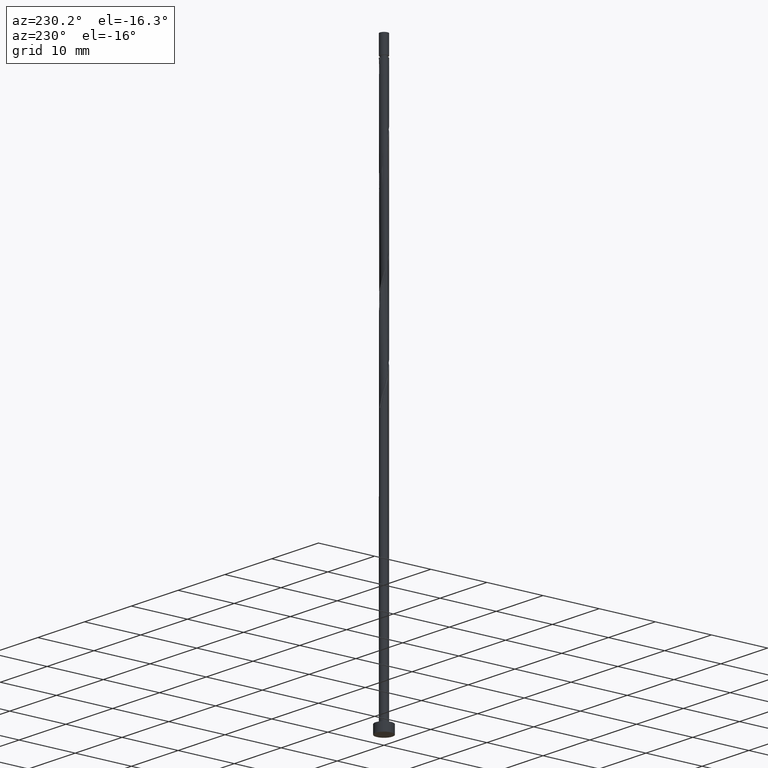
[diagram: clean part render]
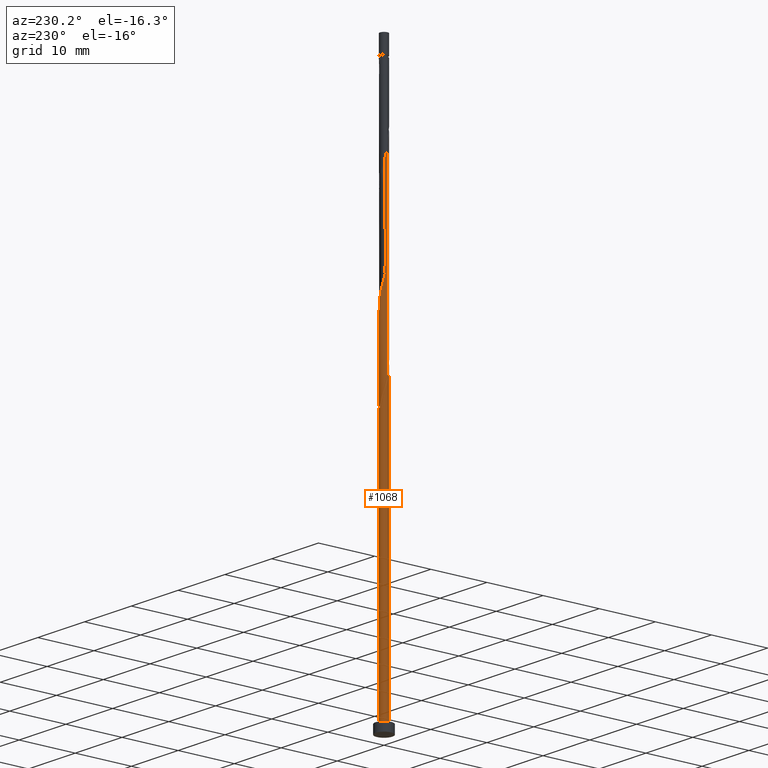
[diagram: same view with one face highlighted and labeled with its STEP entity id]
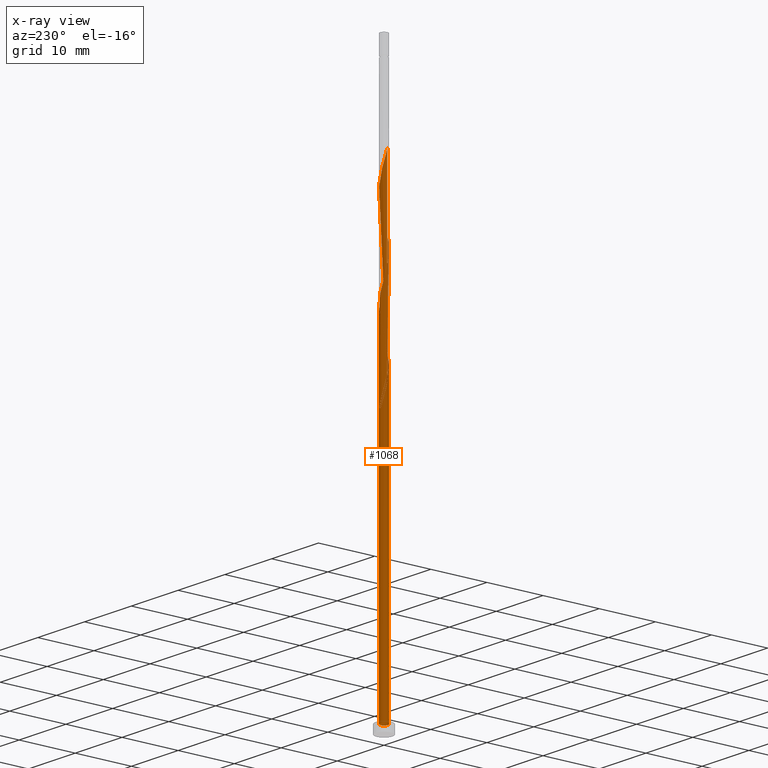
[diagram: x-ray of the same camera — body ghosted, the highlighted face saturated]
A machine part, auxiliary view. The second image highlights one B-rep face of the part: STEP entity #1068.
The next image is the same camera in x-ray: the body ghosted, the highlighted face saturated — about 0% of this face is hidden behind the body in this view.
In plain terms, the highlighted cylindrical surface (bore or boss wall) has radius 0.7 mm, axis along (-0, -0, -1).
Its self-contained STEP definition (entity closure, byte-faithful):
#4 = CARTESIAN_POINT ( 'NONE',  ( 0.000000000000000000, 0.000000000000000000, 46.48462050143847080 ) ) ;
#6 = CARTESIAN_POINT ( 'NONE',  ( -0.6999999999999999556, 0.000000000000000000, 1.500000000000000000 ) ) ;
#7 = CARTESIAN_POINT ( 'NONE',  ( 0.6245337423366339458, -0.3393999038076242480, 73.79943531625326614 ) ) ;
#43 = CARTESIAN_POINT ( 'NONE',  ( -0.4707881453605409772, 0.5325347051691633471, 64.54017605699399951 ) ) ;
#56 = CARTESIAN_POINT ( 'NONE',  ( -0.6637425475935891939, 0.2223641844227018938, 82.59573161254955664 ) ) ;
#59 = CARTESIAN_POINT ( 'NONE',  ( 0.1037282889820811543, 0.6922719422776364429, 78.89202790884586136 ) ) ;
#79 = CARTESIAN_POINT ( 'NONE',  ( 0.1392982411949268418, -0.6860000000000009424, 71.48462050143845659 ) ) ;
#87 = CARTESIAN_POINT ( 'NONE',  ( 0.3342436566413459764, 0.6150456714708456563, 61.29943531625325903 ) ) ;
#91 = CARTESIAN_POINT ( 'NONE',  ( -0.7000000000000015099, 0.1141380602743183453, 49.69051276741740253 ) ) ;
#96 = CARTESIAN_POINT ( 'NONE',  ( -0.7000000000000009548, -4.406995131333641256E-16, 51.18214205642719605 ) ) ;
#101 = CARTESIAN_POINT ( 'NONE',  ( 0.2257945103930814323, 0.6739818462673710098, 61.76239827921622805 ) ) ;
#102 = CARTESIAN_POINT ( 'NONE',  ( -0.7000000000000012879, 4.976543230933968727E-16, 50.12043227978303150 ) ) ;
#104 = CARTESIAN_POINT ( 'NONE',  ( -0.6997670043020833841, -0.01805933803021412751, 66.85499087180882327 ) ) ;
#121 = ORIENTED_EDGE ( 'NONE', *, *, #296, .F. ) ;
#125 = EDGE_CURVE ( 'NONE', #494, #657, #257, .T. ) ;
#130 = CARTESIAN_POINT ( 'NONE',  ( 0.000000000000000000, 0.000000000000000000, 1.500000000000000000 ) ) ;
#144 = DIRECTION ( 'NONE',  ( -0.000000000000000000, -0.000000000000000000, -1.000000000000000000 ) ) ;
#164 = CARTESIAN_POINT ( 'NONE',  ( -0.3655233476607376297, 0.5969863334406314559, 80.74387976069770900 ) ) ;
#167 = CARTESIAN_POINT ( 'NONE',  ( -0.3342436566413458654, -0.6150456714708457673, 52.96610198291993044 ) ) ;
#172 = CARTESIAN_POINT ( 'NONE',  ( -0.6061958099077141560, -0.3711621344802780720, 68.24387976069769479 ) ) ;
#176 = CARTESIAN_POINT ( 'NONE',  ( -0.2602585499609340047, 0.6614379617121000088, 46.94758346440138297 ) ) ;
#178 = CARTESIAN_POINT ( 'NONE',  ( 0.2257945103930814323, 0.6739818462673710098, 78.42906494588287103 ) ) ;
#181 = CARTESIAN_POINT ( 'NONE',  ( -0.6965826557536219932, -0.1414471410982079125, 50.65128716810509957 ) ) ;
#190 = CARTESIAN_POINT ( 'NONE',  ( 0.6513892328306682966, 0.2563046377892427286, 59.44758346440139718 ) ) ;
#206 = CARTESIAN_POINT ( 'NONE',  ( -0.2602585499609340047, 0.6614379617121000088, 80.28091679773471867 ) ) ;
#219 = CARTESIAN_POINT ( 'NONE',  ( -0.2257945103930810438, 0.6739818462673713428, 47.87350939032732811 ) ) ;
#225 = CARTESIAN_POINT ( 'NONE',  ( 0.1037282889820811543, 0.6922719422776364429, 62.22536124217918285 ) ) ;
#233 = CARTESIAN_POINT ( 'NONE',  ( -0.1037282889820806686, 0.6922719422776366649, 47.41054642736438041 ) ) ;
#235 = DIRECTION ( 'NONE',  ( -0.000000000000000000, -0.000000000000000000, -1.000000000000000000 ) ) ;
#252 = CARTESIAN_POINT ( 'NONE',  ( -0.7000000000000016209, 0.1141380602743181927, 83.02384610075070270 ) ) ;
#256 = ORIENTED_EDGE ( 'NONE', *, *, #945, .F. ) ;
#257 =( BOUNDED_CURVE ( )  B_SPLINE_CURVE ( 2, ( #1170, #176, #642, #618, #529, #411, #1060, #91, #1042 ),
 .UNSPECIFIED., .F., .T. ) 
 B_SPLINE_CURVE_WITH_KNOTS ( ( 3, 2, 2, 2, 3 ),
 ( 0.000000000000000000, 0.01388888888888883955, 0.02777777777777779011, 0.04166666666666662966, 0.05452480538552925693 ),
 .UNSPECIFIED. ) 
 CURVE ( )  GEOMETRIC_REPRESENTATION_ITEM ( )  RATIONAL_B_SPLINE_CURVE ( ( 0.9090909090909131685, 0.8952797754656477425, 0.9090909090909131685, 0.8952797754656477425, 0.9090909090909131685, 0.8952797754656477425, 0.9090909090909131685, 0.8963047551055876028, 0.9071930855141258077 ) ) 
 REPRESENTATION_ITEM ( '' )  );
#265 = CARTESIAN_POINT ( 'NONE',  ( -0.6965826557536219932, -0.1414471410982079125, 67.31795383477175676 ) ) ;
#280 = CARTESIAN_POINT ( 'NONE',  ( 0.01833793242891950878, -0.7105620382879020980, 54.35499087180879485 ) ) ;
#286 = FACE_OUTER_BOUND ( 'NONE', #1318, .T. ) ;
#287 = CARTESIAN_POINT ( 'NONE',  ( -0.4426928028896104372, -0.5561094966743203027, 69.16980568662361861 ) ) ;
#288 = CARTESIAN_POINT ( 'NONE',  ( -0.6061958099077141560, -0.3711621344802780720, 51.57721309403103760 ) ) ;
#296 = EDGE_CURVE ( 'NONE', #1133, #365, #1082, .T. ) ;
#300 = CARTESIAN_POINT ( 'NONE',  ( 0.6637425475935891939, -0.2223641844227021713, 57.59573161254954954 ) ) ;
#317 = CARTESIAN_POINT ( 'NONE',  ( 0.6997670043020833841, 0.01805933803021418996, 75.18832420514213766 ) ) ;
#323 = CARTESIAN_POINT ( 'NONE',  ( -0.01833793242891971695, 0.7105620382879018759, 62.68832420514213055 ) ) ;
#325 = CARTESIAN_POINT ( 'NONE',  ( 0.01833793242891973430, 0.7105620382879019870, 46.94758346440140429 ) ) ;
#355 =( BOUNDED_CURVE ( )  B_SPLINE_CURVE ( 2, ( #96, #957, #609, #830, #1190, #870, #673, #1274, #424, #219, #233, #325, #1175 ),
 .UNSPECIFIED., .F., .T. ) 
 B_SPLINE_CURVE_WITH_KNOTS ( ( 3, 2, 2, 2, 2, 2, 3 ),
 ( 0.9295248053855290626, 0.9305555555555555802, 0.9444444444444444198, 0.9583333333333333703, 0.9722222222222222099, 0.9861111111111111605, 1.000000000000000000 ),
 .UNSPECIFIED. ) 
 CURVE ( )  GEOMETRIC_REPRESENTATION_ITEM ( )  RATIONAL_B_SPLINE_CURVE ( ( 0.9071930855141261407, 0.9080659294509737522, 0.9090909090909138346, 0.8952797754656482976, 0.9090909090909138346, 0.8952797754656482976, 0.9090909090909138346, 0.8952797754656482976, 0.9090909090909138346, 0.8952797754656482976, 0.9090909090909138346, 0.8952797754656482976, 0.9090909090909138346 ) ) 
 REPRESENTATION_ITEM ( '' )  );
#365 = VERTEX_POINT ( 'NONE', #865 ) ;
#368 = CARTESIAN_POINT ( 'NONE',  ( 0.6999999999999999556, 0.000000000000000000, 1.500000000000000000 ) ) ;
#377 = CARTESIAN_POINT ( 'NONE',  ( 0.7029513528505444420, -0.1053284650377800530, 74.72536124217920417 ) ) ;
#379 = CIRCLE ( 'NONE', #541, 0.6999999999999999556 ) ;
#384 = CARTESIAN_POINT ( 'NONE',  ( -0.6513892328306680746, -0.2563046377892428951, 67.78091679773473288 ) ) ;
#398 = CARTESIAN_POINT ( 'NONE',  ( 0.6965826557536219932, 0.1414471410982078292, 75.65128716810508536 ) ) ;
#409 = CARTESIAN_POINT ( 'NONE',  ( 0.5244443063986623521, 0.4636358155772992151, 60.37350939032733521 ) ) ;
#411 = CARTESIAN_POINT ( 'NONE',  ( -0.6245337423366339458, 0.3393999038076240815, 48.79943531625325193 ) ) ;
#424 = CARTESIAN_POINT ( 'NONE',  ( -0.3342436566413457544, 0.6150456714708457673, 48.33647235329029712 ) ) ;
#443 =( BOUNDED_CURVE ( )  B_SPLINE_CURVE ( 2, ( #1252, #481, #917, #181, #1244, #288, #1326, #729, #167, #513, #827, #280, #1356, #1049, #624, #1235, #948, #719, #300, #505, #1039, #736, #190, #632, #409, #1057, #87, #101, #225, #323, #1285, #796, #1003, #43, #1045, #934, #809, #834, #104, #265, #384, #172, #1243, #287, #708, #857, #1268, #612, #79, #1121, #966, #727, #1037, #7, #501, #377, #317, #398, #1227, #1142, #479, #1171, #593, #178, #59, #1324, #620, #206, #164, #603, #925, #688, #56, #252, #1109 ),
 .UNSPECIFIED., .F., .T. ) 
 B_SPLINE_CURVE_WITH_KNOTS ( ( 3, 2, 2, 2, 2, 2, 2, 2, 2, 2, 2, 2, 2, 2, 2, 2, 2, 2, 2, 2, 2, 2, 2, 2, 2, 2, 2, 2, 2, 2, 2, 2, 2, 2, 2, 2, 2, 3 ),
 ( 0.05452480538552925693, 0.05555555555555558023, 0.06944444444444441977, 0.08333333333333337034, 0.09722222222222220989, 0.1111111111111111605, 0.1250000000000000000, 0.1388888888888888395, 0.1527777777777777901, 0.1666666666666666297, 0.1805555555555555802, 0.1944444444444444198, 0.2083333333333333703, 0.2222222222222222099, 0.2361111111111111605, 0.2500000000000000000, 0.2638888888888888395, 0.2777777777777777901, 0.2916666666666666297, 0.3055555555555555802, 0.3194444444444444198, 0.3333333333333333703, 0.3472222222222222099, 0.3611111111111111605, 0.3750000000000000000, 0.3888888888888888395, 0.4027777777777777901, 0.4166666666666666297, 0.4305555555555555802, 0.4444444444444444198, 0.4583333333333333703, 0.4722222222222222099, 0.4861111111111111605, 0.5000000000000000000, 0.5138888888888888395, 0.5277777777777777901, 0.5416666666666667407, 0.5545248053855292847 ),
 .UNSPECIFIED. ) 
 CURVE ( )  GEOMETRIC_REPRESENTATION_ITEM ( )  RATIONAL_B_SPLINE_CURVE ( ( 0.9071930855141258077, 0.9080659294509733082, 0.9090909090909131685, 0.8952797754656477425, 0.9090909090909131685, 0.8952797754656477425, 0.9090909090909131685, 0.8952797754656477425, 0.9090909090909131685, 0.8952797754656477425, 0.9090909090909131685, 0.8952797754656477425, 0.9090909090909131685, 0.8952797754656477425, 0.9090909090909131685, 0.8952797754656477425, 0.9090909090909131685, 0.8952797754656477425, 0.9090909090909131685, 0.8952797754656477425, 0.9090909090909131685, 0.8952797754656477425, 0.9090909090909131685, 0.8952797754656477425, 0.9090909090909131685, 0.8952797754656477425, 0.9090909090909131685, 0.8952797754656477425, 0.9090909090909131685, 0.8952797754656477425, 0.9090909090909131685, 0.8952797754656477425, 0.9090909090909131685, 0.8952797754656477425, 0.9090909090909131685, 0.8952797754656477425, 0.9090909090909131685, 0.8952797754656477425, 0.9090909090909131685, 0.8952797754656477425, 0.9090909090909131685, 0.8952797754656477425, 0.9090909090909131685, 0.8952797754656477425, 0.9090909090909131685, 0.8952797754656477425, 0.9090909090909131685, 0.8952797754656477425, 0.9090909090909131685, 0.8952797754656477425, 0.9090909090909131685, 0.8952797754656477425, 0.9090909090909131685, 0.8952797754656477425, 0.9090909090909131685, 0.8952797754656477425, 0.9090909090909131685, 0.8952797754656477425, 0.9090909090909131685, 0.8952797754656477425, 0.9090909090909131685, 0.8952797754656477425, 0.9090909090909131685, 0.8952797754656477425, 0.9090909090909131685, 0.8952797754656477425, 0.9090909090909131685, 0.8952797754656477425, 0.9090909090909131685, 0.8952797754656477425, 0.9090909090909131685, 0.8952797754656477425, 0.9090909090909131685, 0.8963047551055876028, 0.9071930855141258077 ) ) 
 REPRESENTATION_ITEM ( '' )  );
#474 = EDGE_CURVE ( 'NONE', #1225, #1276, #755, .T. ) ;
#479 = CARTESIAN_POINT ( 'NONE',  ( 0.5244443063986623521, 0.4636358155772992151, 77.04017605699397109 ) ) ;
#481 = CARTESIAN_POINT ( 'NONE',  ( -0.7000000000000011768, -0.009031172032416169212, 50.15444965371538188 ) ) ;
#491 = DIRECTION ( 'NONE',  ( 1.000000000000000000, 0.000000000000000000, 0.000000000000000000 ) ) ;
#494 = VERTEX_POINT ( 'NONE', #872 ) ;
#501 = CARTESIAN_POINT ( 'NONE',  ( 0.6637425475935891939, -0.2223641844227021713, 74.26239827921621384 ) ) ;
#505 = CARTESIAN_POINT ( 'NONE',  ( 0.7029513528505444420, -0.1053284650377800530, 58.05869457551250434 ) ) ;
#513 = CARTESIAN_POINT ( 'NONE',  ( -0.2257945103930810715, -0.6739818462673711208, 53.42906494588289235 ) ) ;
#526 = CARTESIAN_POINT ( 'NONE',  ( 0.1392982411949270638, 0.6860000000000011644, 46.48462050143843527 ) ) ;
#529 = CARTESIAN_POINT ( 'NONE',  ( -0.5476609438485873227, 0.4359673044883936588, 48.33647235329029002 ) ) ;
#539 = AXIS2_PLACEMENT_3D ( 'NONE', #130, #567, #759 ) ;
#541 = AXIS2_PLACEMENT_3D ( 'NONE', #1259, #747, #491 ) ;
#546 = DIRECTION ( 'NONE',  ( -1.100531396792705681E-29, -4.956352788505163938E-14, -1.000000000000000000 ) ) ;
#567 = DIRECTION ( 'NONE',  ( 0.000000000000000000, 0.000000000000000000, 1.000000000000000000 ) ) ;
#581 = ORIENTED_EDGE ( 'NONE', *, *, #780, .T. ) ;
#583 = VECTOR ( 'NONE', #235, 1000.000000000000000 ) ;
#593 = CARTESIAN_POINT ( 'NONE',  ( 0.3342436566413459764, 0.6150456714708456563, 77.96610198291992333 ) ) ;
#603 = CARTESIAN_POINT ( 'NONE',  ( -0.4707881453605409772, 0.5325347051691633471, 81.20684272366064249 ) ) ;
#609 = CARTESIAN_POINT ( 'NONE',  ( -0.6997670043020833841, 0.01805933803021419343, 51.11425013106806858 ) ) ;
#612 = CARTESIAN_POINT ( 'NONE',  ( 0.01833793242891950878, -0.7105620382879020980, 71.02165753847549468 ) ) ;
#618 = CARTESIAN_POINT ( 'NONE',  ( -0.4707881453605409772, 0.5325347051691633471, 47.87350939032732811 ) ) ;
#619 = ORIENTED_EDGE ( 'NONE', *, *, #1194, .T. ) ;
#620 = CARTESIAN_POINT ( 'NONE',  ( -0.1392982411949267585, 0.6860000000000009424, 79.81795383477178518 ) ) ;
#624 = CARTESIAN_POINT ( 'NONE',  ( 0.3655233476607375187, -0.5969863334406314559, 55.74387976069768769 ) ) ;
#632 = CARTESIAN_POINT ( 'NONE',  ( 0.6061958099077143780, 0.3711621344802775724, 59.91054642736436620 ) ) ;
#642 = CARTESIAN_POINT ( 'NONE',  ( -0.3655233476607376297, 0.5969863334406314559, 47.41054642736436620 ) ) ;
#657 = VERTEX_POINT ( 'NONE', #102 ) ;
#661 = EDGE_CURVE ( 'NONE', #494, #1020, #901, .T. ) ;
#673 = CARTESIAN_POINT ( 'NONE',  ( -0.5244443063986623521, 0.4636358155772993817, 49.26239827921622094 ) ) ;
#688 = CARTESIAN_POINT ( 'NONE',  ( -0.6245337423366339458, 0.3393999038076240815, 82.13276864958659473 ) ) ;
#704 = DIRECTION ( 'NONE',  ( -1.000000000000000000, 0.000000000000000000, 0.000000000000000000 ) ) ;
#708 = CARTESIAN_POINT ( 'NONE',  ( -0.3342436566413458654, -0.6150456714708457673, 69.63276864958659473 ) ) ;
#711 = ORIENTED_EDGE ( 'NONE', *, *, #661, .T. ) ;
#719 = CARTESIAN_POINT ( 'NONE',  ( 0.6245337423366339458, -0.3393999038076242480, 57.13276864958658763 ) ) ;
#727 = CARTESIAN_POINT ( 'NONE',  ( 0.4707881453605408661, -0.5325347051691634581, 72.87350939032732811 ) ) ;
#729 = CARTESIAN_POINT ( 'NONE',  ( -0.4426928028896104372, -0.5561094966743203027, 52.50313901995695431 ) ) ;
#736 = CARTESIAN_POINT ( 'NONE',  ( 0.6965826557536219932, 0.1414471410982078292, 58.98462050143843527 ) ) ;
#740 = ORIENTED_EDGE ( 'NONE', *, *, #125, .F. ) ;
#747 = DIRECTION ( 'NONE',  ( 0.000000000000000000, 0.000000000000000000, 1.000000000000000000 ) ) ;
#755 = CIRCLE ( 'NONE', #539, 0.6999999999999999556 ) ;
#759 = DIRECTION ( 'NONE',  ( 1.000000000000000000, 0.000000000000000000, 0.000000000000000000 ) ) ;
#777 = LINE ( 'NONE', #1079, #583 ) ;
#780 = EDGE_CURVE ( 'NONE', #1276, #1225, #379, .T. ) ;
#781 = VECTOR ( 'NONE', #1283, 1000.000000000000000 ) ;
#796 = CARTESIAN_POINT ( 'NONE',  ( -0.2602585499609340047, 0.6614379617121000088, 63.61425013106805437 ) ) ;
#799 = EDGE_CURVE ( 'NONE', #365, #1020, #355, .T. ) ;
#802 = ORIENTED_EDGE ( 'NONE', *, *, #799, .F. ) ;
#809 = CARTESIAN_POINT ( 'NONE',  ( -0.6637425475935891939, 0.2223641844227018938, 65.92906494588287103 ) ) ;
#827 = CARTESIAN_POINT ( 'NONE',  ( -0.1037282889820807519, -0.6922719422776365539, 53.89202790884584005 ) ) ;
#830 = CARTESIAN_POINT ( 'NONE',  ( -0.6965826557536223262, 0.1414471410982080235, 50.65128716810509957 ) ) ;
#834 = CARTESIAN_POINT ( 'NONE',  ( -0.7029513528505444420, 0.1053284650377796922, 66.39202790884584715 ) ) ;
#857 = CARTESIAN_POINT ( 'NONE',  ( -0.2257945103930810715, -0.6739818462673711208, 70.09573161254951401 ) ) ;
#865 = CARTESIAN_POINT ( 'NONE',  ( -0.7000000000000009548, -4.406995131333641256E-16, 51.18214205642719605 ) ) ;
#870 = CARTESIAN_POINT ( 'NONE',  ( -0.6061958099077143780, 0.3711621344802780720, 49.72536124217917575 ) ) ;
#872 = CARTESIAN_POINT ( 'NONE',  ( -0.1392982411949267307, 0.6860000000000009424, 46.48462050143843527 ) ) ;
#887 = ORIENTED_EDGE ( 'NONE', *, *, #474, .T. ) ;
#901 = CIRCLE ( 'NONE', #1272, 0.6999999999999999556 ) ;
#917 = CARTESIAN_POINT ( 'NONE',  ( -0.6997670043020833841, -0.01805933803021412751, 50.18832420514214476 ) ) ;
#925 = CARTESIAN_POINT ( 'NONE',  ( -0.5476609438485873227, 0.4359673044883936588, 81.66980568662364703 ) ) ;
#934 = CARTESIAN_POINT ( 'NONE',  ( -0.6245337423366339458, 0.3393999038076240815, 65.46610198291992333 ) ) ;
#945 = EDGE_CURVE ( 'NONE', #657, #1133, #443, .T. ) ;
#948 = CARTESIAN_POINT ( 'NONE',  ( 0.5476609438485873227, -0.4359673044883936588, 56.66980568662364703 ) ) ;
#957 = CARTESIAN_POINT ( 'NONE',  ( -0.7000000000000009548, 0.009031172032414521225, 51.14812468249482436 ) ) ;
#966 = CARTESIAN_POINT ( 'NONE',  ( 0.3655233476607375187, -0.5969863334406314559, 72.41054642736436620 ) ) ;
#972 = ORIENTED_EDGE ( 'NONE', *, *, #1194, .F. ) ;
#993 = CARTESIAN_POINT ( 'NONE',  ( -0.6999999999999999556, 0.000000000000000000, 100.0000000000000000 ) ) ;
#1003 = CARTESIAN_POINT ( 'NONE',  ( -0.3655233476607376297, 0.5969863334406314559, 64.07721309403103760 ) ) ;
#1020 = VERTEX_POINT ( 'NONE', #526 ) ;
#1037 = CARTESIAN_POINT ( 'NONE',  ( 0.5476609438485873227, -0.4359673044883936588, 73.33647235329029002 ) ) ;
#1039 = CARTESIAN_POINT ( 'NONE',  ( 0.6997670043020833841, 0.01805933803021418996, 58.52165753847548046 ) ) ;
#1042 = CARTESIAN_POINT ( 'NONE',  ( -0.7000000000000012879, 4.976543230933968727E-16, 50.12043227978303150 ) ) ;
#1045 = CARTESIAN_POINT ( 'NONE',  ( -0.5476609438485873227, 0.4359673044883936588, 65.00313901995694721 ) ) ;
#1049 = CARTESIAN_POINT ( 'NONE',  ( 0.2602585499609338382, -0.6614379617121002308, 55.28091679773471867 ) ) ;
#1057 = CARTESIAN_POINT ( 'NONE',  ( 0.4426928028896104927, 0.5561094966743203027, 60.83647235329028291 ) ) ;
#1060 = CARTESIAN_POINT ( 'NONE',  ( -0.6637425475935891939, 0.2223641844227018938, 49.26239827921621384 ) ) ;
#1068 = ADVANCED_FACE ( 'NONE', ( #286 ), #1084, .T. ) ;
#1079 = CARTESIAN_POINT ( 'NONE',  ( -0.6999999999999999556, 0.000000000000000000, 100.0000000000000000 ) ) ;
#1082 = LINE ( 'NONE', #993, #781 ) ;
#1084 = CYLINDRICAL_SURFACE ( 'NONE', #1355, 0.6999999999999999556 ) ;
#1109 = CARTESIAN_POINT ( 'NONE',  ( -0.7000000000000010658, -4.033520967661301485E-16, 83.45376561311633168 ) ) ;
#1111 = CARTESIAN_POINT ( 'NONE',  ( 0.000000000000000000, 0.000000000000000000, 100.0000000000000000 ) ) ;
#1121 = CARTESIAN_POINT ( 'NONE',  ( 0.2602585499609338382, -0.6614379617121002308, 71.94758346440141850 ) ) ;
#1133 = VERTEX_POINT ( 'NONE', #1182 ) ;
#1142 = CARTESIAN_POINT ( 'NONE',  ( 0.6061958099077143780, 0.3711621344802775724, 76.57721309403105181 ) ) ;
#1170 = CARTESIAN_POINT ( 'NONE',  ( -0.1392982411949267030, 0.6860000000000009424, 46.48462050143843527 ) ) ;
#1171 = CARTESIAN_POINT ( 'NONE',  ( 0.4426928028896104927, 0.5561094966743203027, 77.50313901995693300 ) ) ;
#1175 = CARTESIAN_POINT ( 'NONE',  ( 0.1392982411949270360, 0.6860000000000011644, 46.48462050143843527 ) ) ;
#1182 = CARTESIAN_POINT ( 'NONE',  ( -0.7000000000000010658, -4.033520967661301485E-16, 83.45376561311633168 ) ) ;
#1190 = CARTESIAN_POINT ( 'NONE',  ( -0.6513892328306682966, 0.2563046377892430061, 50.18832420514213766 ) ) ;
#1194 = EDGE_CURVE ( 'NONE', #657, #1225, #777, .T. ) ;
#1225 = VERTEX_POINT ( 'NONE', #6 ) ;
#1227 = CARTESIAN_POINT ( 'NONE',  ( 0.6513892328306682966, 0.2563046377892427286, 76.11425013106804727 ) ) ;
#1235 = CARTESIAN_POINT ( 'NONE',  ( 0.4707881453605408661, -0.5325347051691634581, 56.20684272366065670 ) ) ;
#1243 = CARTESIAN_POINT ( 'NONE',  ( -0.5244443063986624631, -0.4636358155772990486, 68.70684272366064249 ) ) ;
#1244 = CARTESIAN_POINT ( 'NONE',  ( -0.6513892328306680746, -0.2563046377892428951, 51.11425013106806148 ) ) ;
#1252 = CARTESIAN_POINT ( 'NONE',  ( -0.7000000000000012879, 4.976543230933968727E-16, 50.12043227978303150 ) ) ;
#1259 = CARTESIAN_POINT ( 'NONE',  ( 0.000000000000000000, 0.000000000000000000, 1.500000000000000000 ) ) ;
#1268 = CARTESIAN_POINT ( 'NONE',  ( -0.1037282889820807519, -0.6922719422776365539, 70.55869457551250434 ) ) ;
#1272 = AXIS2_PLACEMENT_3D ( 'NONE', #4, #546, #1282 ) ;
#1274 = CARTESIAN_POINT ( 'NONE',  ( -0.4426928028896104927, 0.5561094966743204138, 48.79943531625323772 ) ) ;
#1276 = VERTEX_POINT ( 'NONE', #368 ) ;
#1282 = DIRECTION ( 'NONE',  ( 0.000000000000000000, 1.000000000000000000, -4.956352788505163307E-14 ) ) ;
#1283 = DIRECTION ( 'NONE',  ( -0.000000000000000000, -0.000000000000000000, -1.000000000000000000 ) ) ;
#1285 = CARTESIAN_POINT ( 'NONE',  ( -0.1392982411949267585, 0.6860000000000009424, 63.15128716810511378 ) ) ;
#1318 = EDGE_LOOP ( 'NONE', ( #121, #256, #619, #887, #581, #972, #740, #711, #802 ) ) ;
#1324 = CARTESIAN_POINT ( 'NONE',  ( -0.01833793242891971695, 0.7105620382879018759, 79.35499087180879485 ) ) ;
#1326 = CARTESIAN_POINT ( 'NONE',  ( -0.5244443063986624631, -0.4636358155772990486, 52.04017605699399951 ) ) ;
#1355 = AXIS2_PLACEMENT_3D ( 'NONE', #1111, #144, #704 ) ;
#1356 = CARTESIAN_POINT ( 'NONE',  ( 0.1392982411949268418, -0.6860000000000009424, 54.81795383477177097 ) ) ;